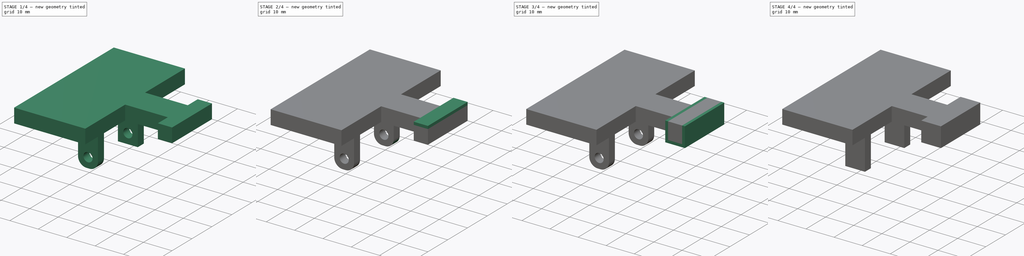
[diagram: build sequence overview — one tinted view per stage of 4, left to right]
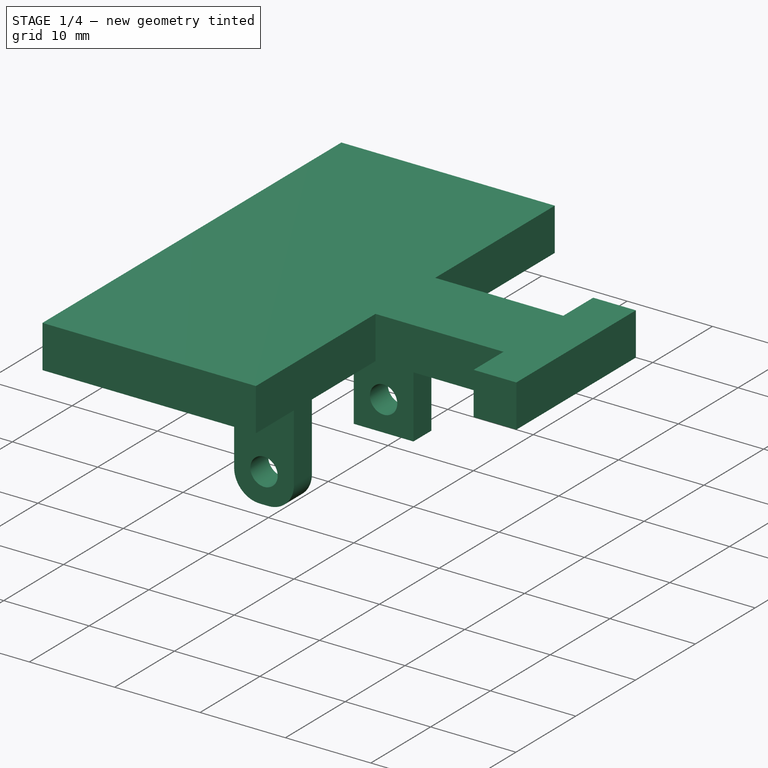
[diagram: stage 1 of 4 — iso view after this stage's code; geometry added in this stage tinted green]
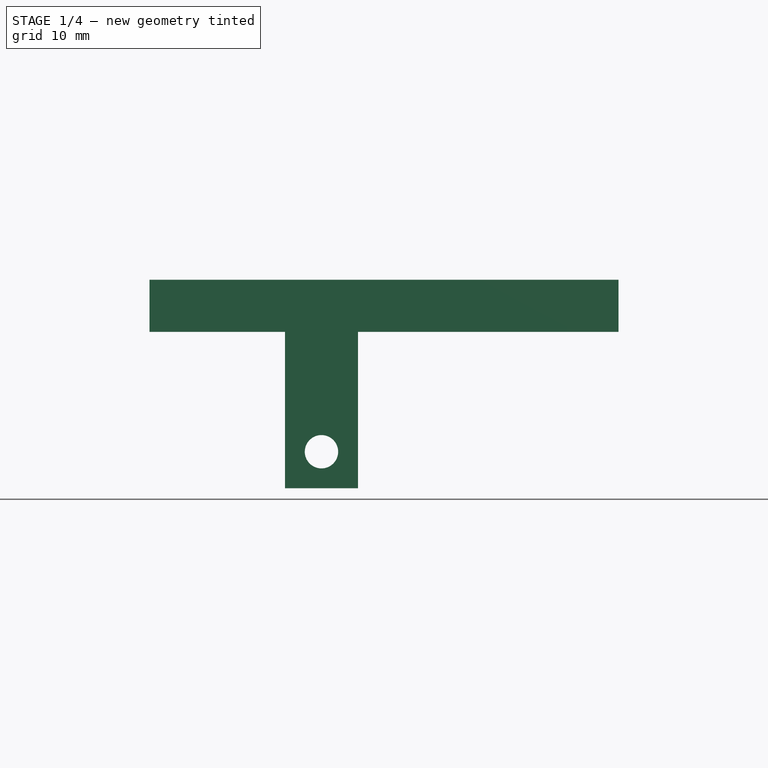
[diagram: stage 1 of 4 — front view after this stage's code; geometry added in this stage tinted green]
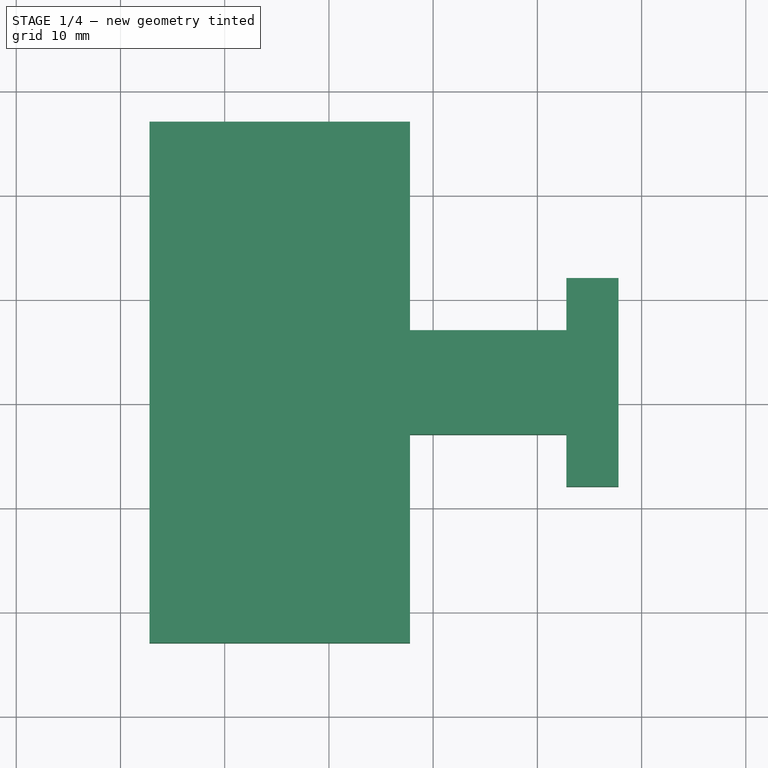
[diagram: stage 1 of 4 — top view after this stage's code; geometry added in this stage tinted green]
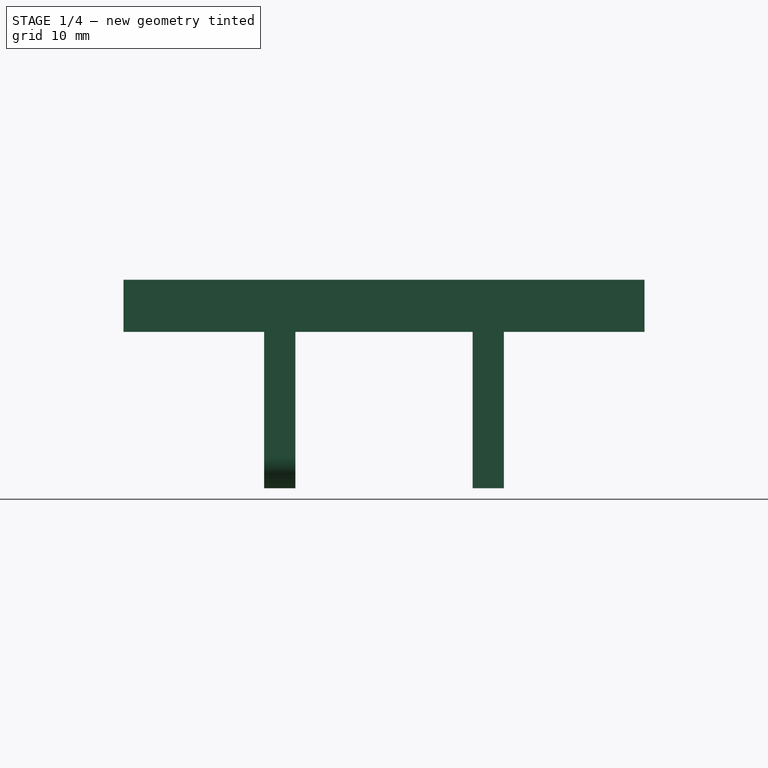
[diagram: stage 1 of 4 — right view after this stage's code; geometry added in this stage tinted green]
FCSTD DOCUMENT  (FreeCAD 0.15R4671 (Git))
Label: LfMount
License: All rights reserved
LicenseURL: http://en.wikipedia.org/wiki/All_rights_reserved
objects: Sketcher::SketchObject×7, PartDesign::Pad×6, PartDesign::Fillet×4, PartDesign::Pocket×2, App::MeasureDistance×1
note: 27 computed .brp shape members not serialized (recipe doc carries the construction recipe); baked Part::Feature solids carry a one-line shape summary decoded from their .brp

FEATURE [PartDesign::Pocket] Pocket
  Length = 100
  Type = 0
FEATURE [PartDesign::Fillet] Fillet
  Base = -> Pocket [Edge51]
  Radius = 3
FEATURE [PartDesign::Fillet] Fillet001
  Base = -> Fillet [Edge9]
  Radius = 3
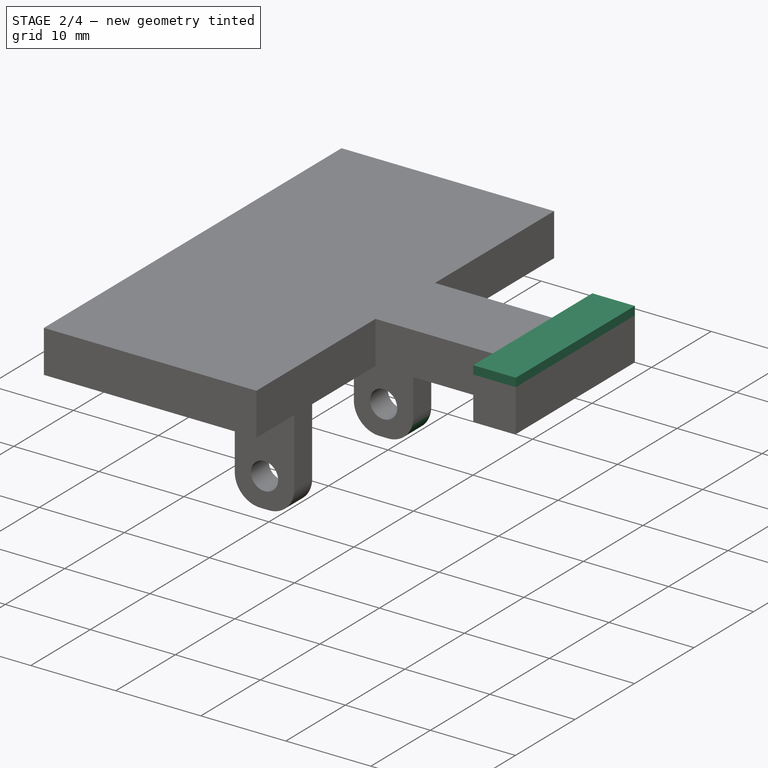
[diagram: stage 2 of 4 — iso view after this stage's code; geometry added in this stage tinted green]
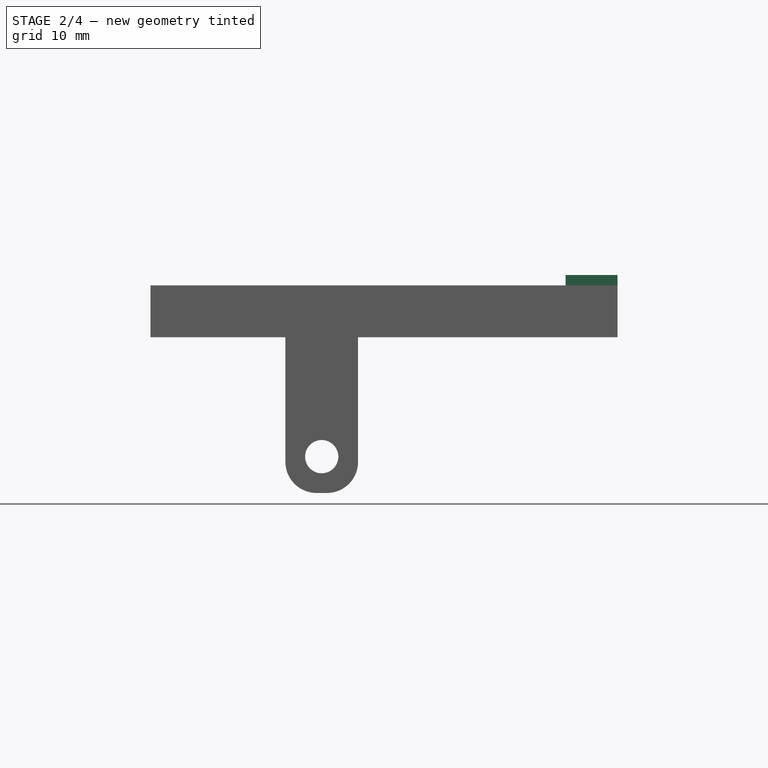
[diagram: stage 2 of 4 — front view after this stage's code; geometry added in this stage tinted green]
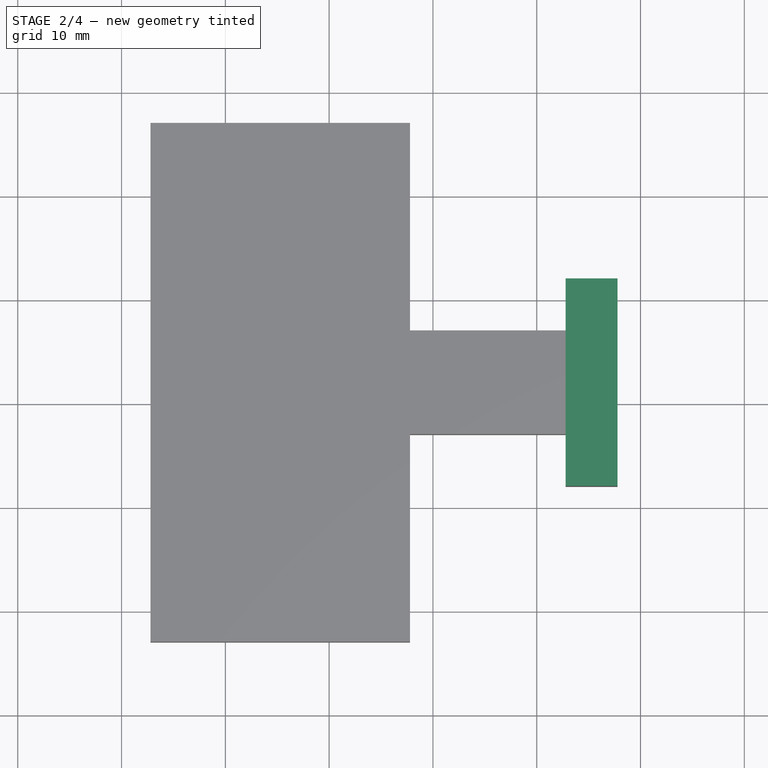
[diagram: stage 2 of 4 — top view after this stage's code; geometry added in this stage tinted green]
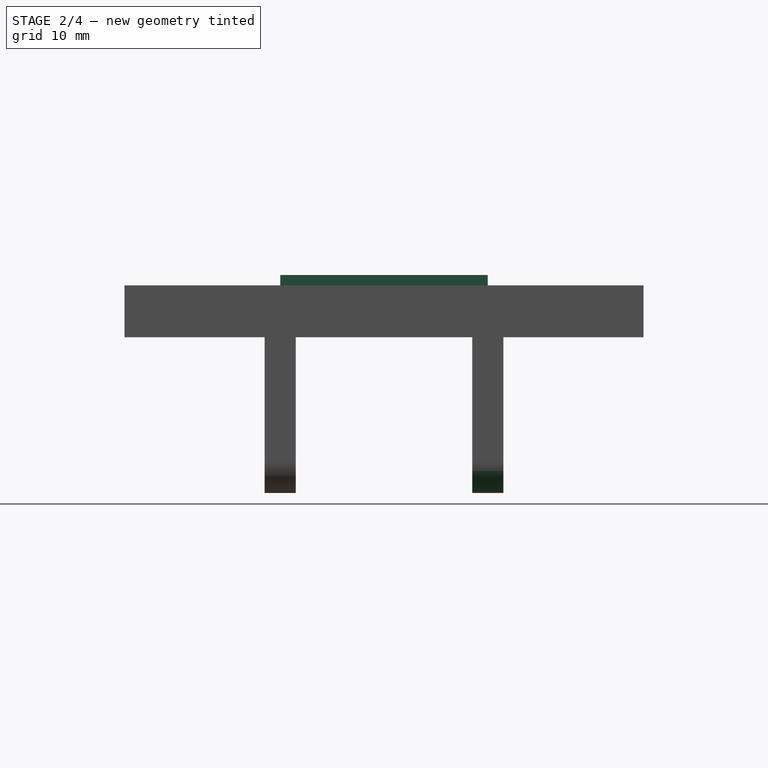
[diagram: stage 2 of 4 — right view after this stage's code; geometry added in this stage tinted green]
FEATURE [PartDesign::Fillet] Fillet002
  Base = -> Fillet001 [Edge63]
  Radius = 3
FEATURE [PartDesign::Fillet] Fillet003
  Base = -> Fillet002 [Edge33]
  Radius = 3
FEATURE [Sketcher::SketchObject] Sketch003
  ExternalGeometry = -> [Fillet003]
  Placement = pos=(0,0,5) rot=(0,0,1;0rad)
  Support = -> Fillet003 [Face26]
  sketch-geometry (4):
    g0: LineSegment StartX=-22.2152 StartY=21.7878 StartZ=0 EndX=-27.2152 EndY=21.7878 EndZ=0
    g1: LineSegment StartX=-27.2152 StartY=21.7878 StartZ=0 EndX=-27.2152 EndY=1.78784 EndZ=0
    g2: LineSegment StartX=-27.2152 StartY=1.78784 StartZ=0 EndX=-22.2152 EndY=1.78784 EndZ=0
    g3: LineSegment StartX=-22.2152 StartY=1.78784 StartZ=0 EndX=-22.2152 EndY=21.7878 EndZ=0
  constraints (10):
    c: Coincident(g0,g1)
    c: Coincident(g1,g2)
    c: Coincident(g2,g3)
    c: Coincident(g3,g0)
    c: Horizontal(g0)
    c: Horizontal(g2)
    c: Vertical(g1)
    c: Vertical(g3)
    c: Coincident(g0,g-3)
    c: Coincident(g1,g-4)
FEATURE [PartDesign::Pad] Pad002
  Length = 1
  Length2 = 100
  Sketch = -> Sketch003
  Type = 0
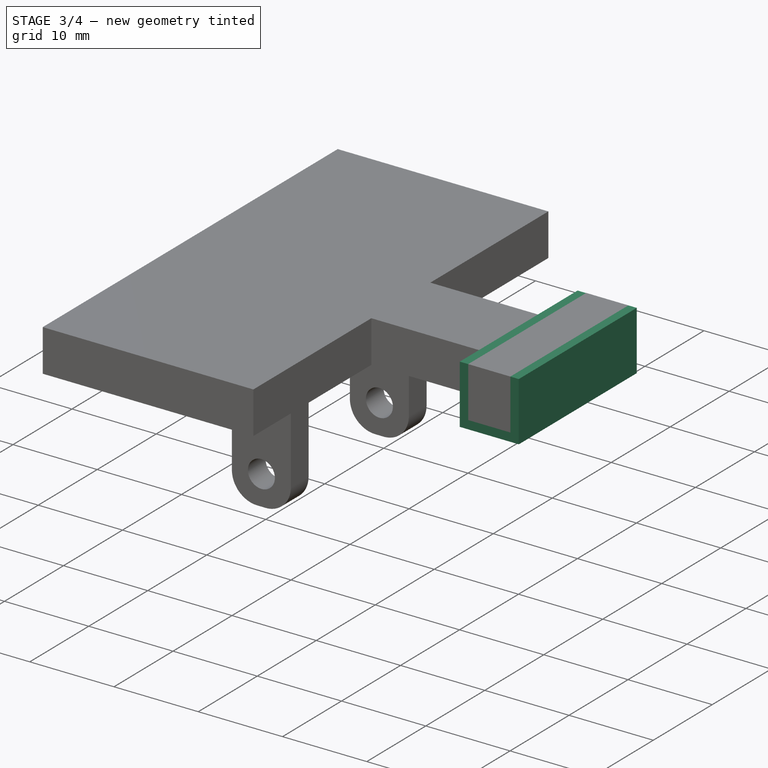
[diagram: stage 3 of 4 — iso view after this stage's code; geometry added in this stage tinted green]
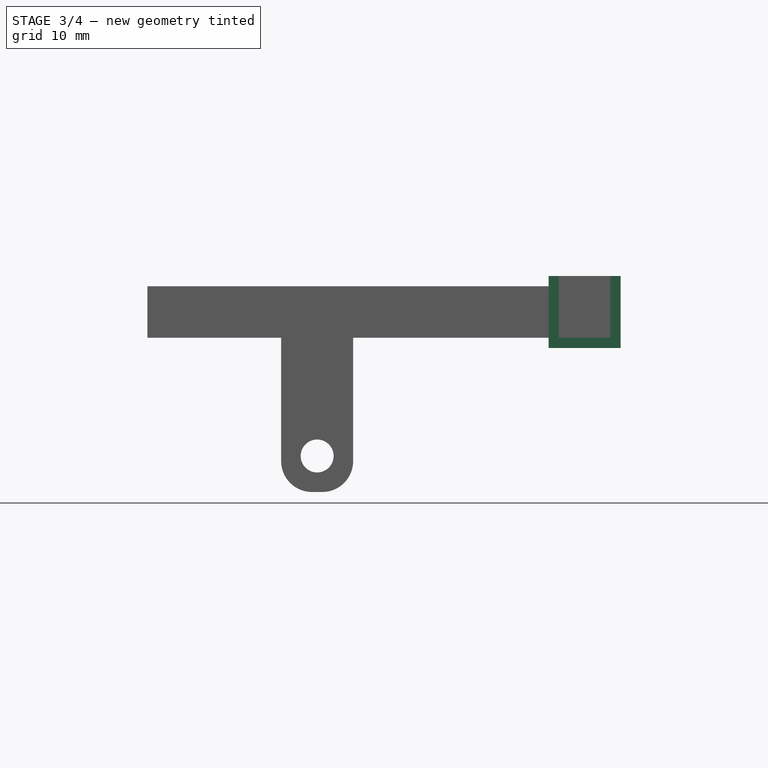
[diagram: stage 3 of 4 — front view after this stage's code; geometry added in this stage tinted green]
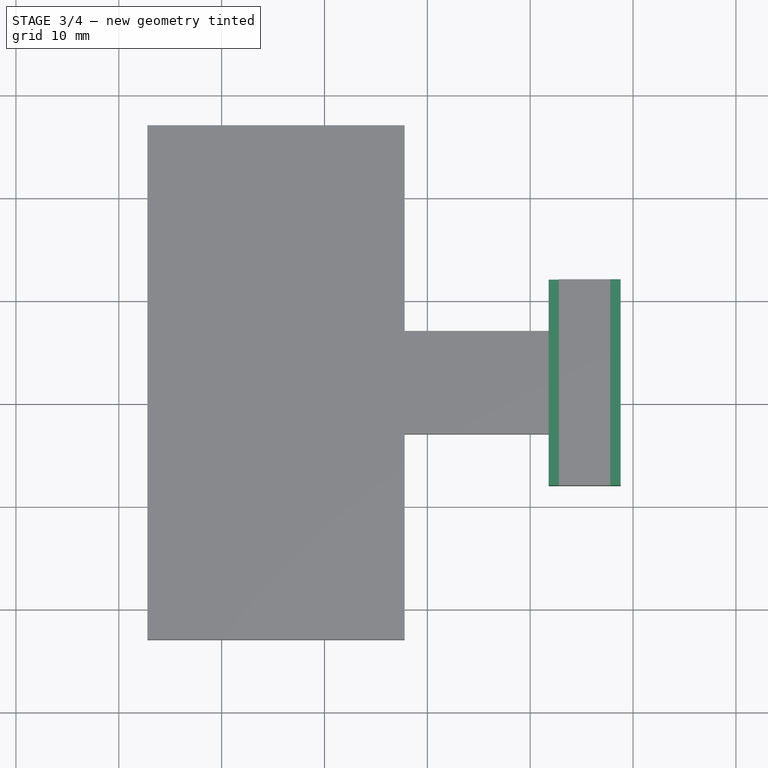
[diagram: stage 3 of 4 — top view after this stage's code; geometry added in this stage tinted green]
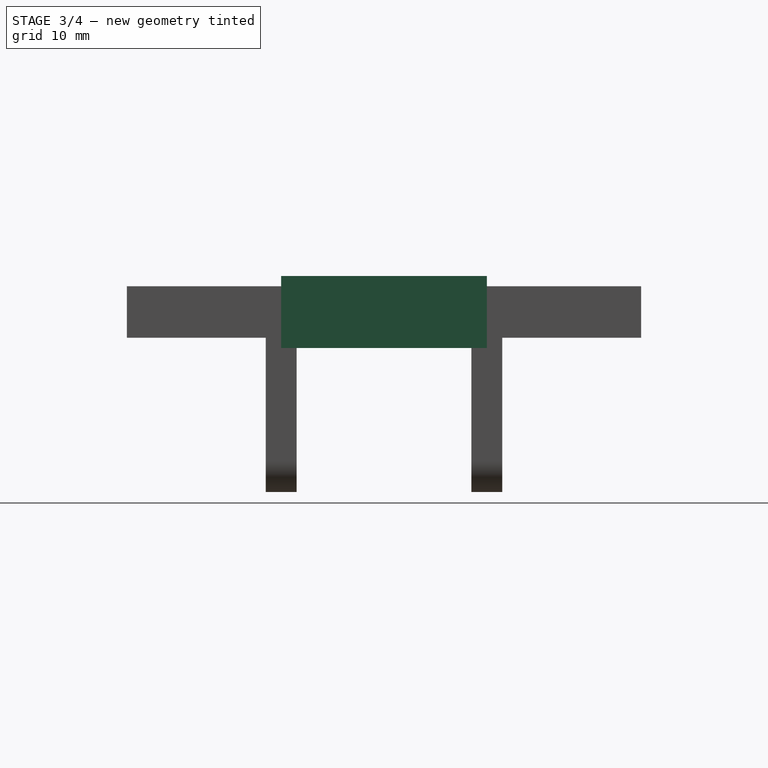
[diagram: stage 3 of 4 — right view after this stage's code; geometry added in this stage tinted green]
FEATURE [Sketcher::SketchObject] Sketch004
  ExternalGeometry = -> [Pad002]
  Placement = pos=(0,0,0) rot=(1,0,0;3.14159rad)
  Support = -> Pad002 [Face12]
  sketch-geometry (4):
    g0: LineSegment StartX=-27.2152 StartY=-21.7878 StartZ=0 EndX=-22.2152 EndY=-21.7878 EndZ=0
    g1: LineSegment StartX=-22.2152 StartY=-21.7878 StartZ=0 EndX=-22.2152 EndY=-1.78784 EndZ=0
    g2: LineSegment StartX=-22.2152 StartY=-1.78784 StartZ=0 EndX=-27.2152 EndY=-1.78784 EndZ=0
    g3: LineSegment StartX=-27.2152 StartY=-1.78784 StartZ=0 EndX=-27.2152 EndY=-21.7878 EndZ=0
  constraints (10):
    c: Coincident(g0,g1)
    c: Coincident(g1,g2)
    c: Coincident(g2,g3)
    c: Coincident(g3,g0)
    c: Horizontal(g0)
    c: Horizontal(g2)
    c: Vertical(g1)
    c: Vertical(g3)
    c: Coincident(g0,g-5)
    c: Coincident(g1,g-4)
FEATURE [PartDesign::Pad] Pad003
  Length = 1
  Length2 = 100
  Sketch = -> Sketch004
  Type = 0
FEATURE [Sketcher::SketchObject] Sketch005
  ExternalGeometry = -> [Pad003]
  Placement = pos=(-22.2152,0,0) rot=(0.57735,0.57735,0.57735;2.0944rad)
  Support = -> Pad003 [Face11]
  sketch-geometry (4):
    g0: LineSegment StartX=1.78784 StartY=6 StartZ=0 EndX=21.7878 EndY=6 EndZ=0
    g1: LineSegment StartX=21.7878 StartY=6 StartZ=0 EndX=21.7878 EndY=-1 EndZ=0
    g2: LineSegment StartX=21.7878 StartY=-1 StartZ=0 EndX=1.78784 EndY=-1 EndZ=0
    g3: LineSegment StartX=1.78784 StartY=-1 StartZ=0 EndX=1.78784 EndY=6 EndZ=0
  constraints (9):
    c: Coincident(g0,g1)
    c: Coincident(g1,g2)
    c: Coincident(g2,g3)
    c: Coincident(g3,g0)
    c: Horizontal(g0)
    c: Horizontal(g2)
    c: Vertical(g1)
    c: Vertical(g3)
    c: Coincident(g0,g-3)
FEATURE [PartDesign::Pad] Pad004
  Length = 1
  Length2 = 100
  Sketch = -> Sketch005
  Type = 0
FEATURE [Sketcher::SketchObject] Sketch006
  ExternalGeometry = -> [Pad004]
  Placement = pos=(-27.2152,0,0) rot=(0.57735,-0.57735,-0.57735;2.0944rad)
  Support = -> Pad004 [Face7]
  sketch-geometry (4):
    g0: LineSegment StartX=-21.7524 StartY=6 StartZ=0 EndX=-1.78784 EndY=6 EndZ=0
    g1: LineSegment StartX=-1.78784 StartY=6 StartZ=0 EndX=-1.78784 EndY=-1 EndZ=0
    g2: LineSegment StartX=-1.78784 StartY=-1 StartZ=0 EndX=-21.7524 EndY=-1 EndZ=0
    g3: LineSegment StartX=-21.7524 StartY=-1 StartZ=0 EndX=-21.7524 EndY=6 EndZ=0
  constraints (10):
    c: Coincident(g0,g1)
    c: Coincident(g1,g2)
    c: Coincident(g2,g3)
    c: Coincident(g3,g0)
    c: Horizontal(g0)
    c: Horizontal(g2)
    c: Vertical(g1)
    c: Vertical(g3)
    c: PointOnObject(g0,g-3)
    c: Coincident(g1,g-4)
FEATURE [PartDesign::Pad] Pad005
  Length = 1
  Length2 = 100
  Sketch = -> Sketch006
  Type = 0
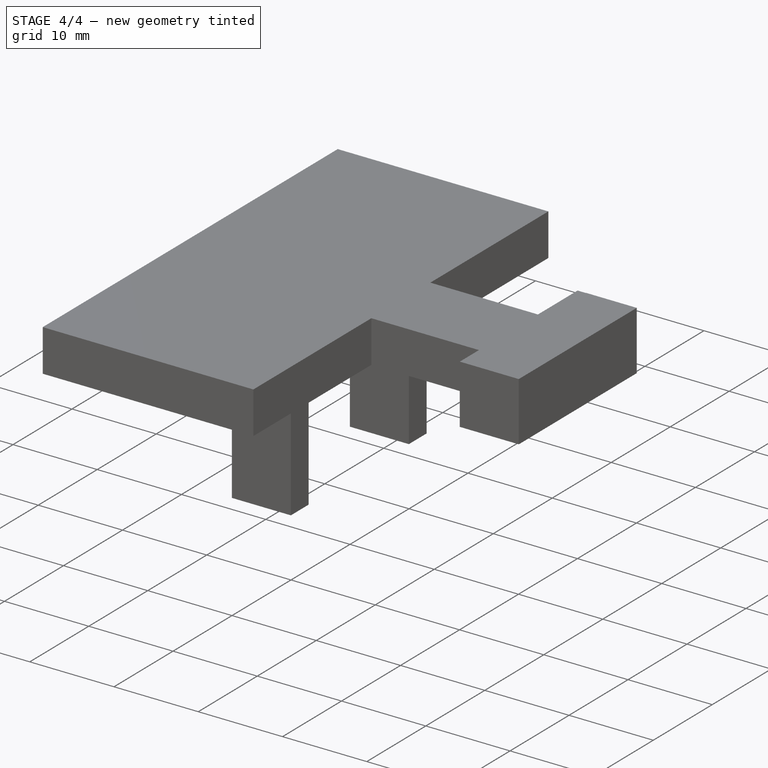
[diagram: stage 4 of 4 — iso view after this stage's code; geometry added in this stage tinted green]
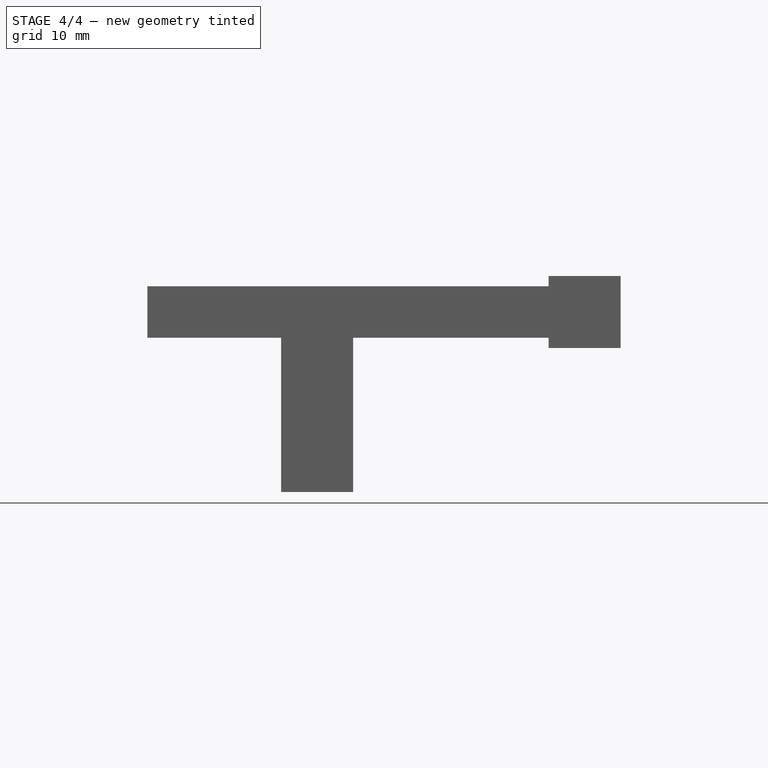
[diagram: stage 4 of 4 — front view after this stage's code; geometry added in this stage tinted green]
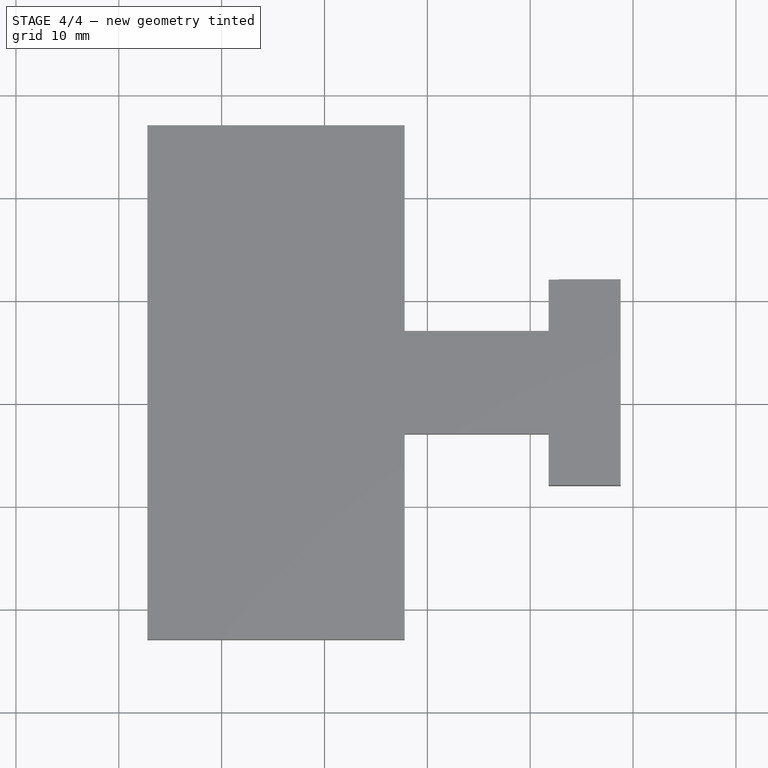
[diagram: stage 4 of 4 — top view after this stage's code; geometry added in this stage tinted green]
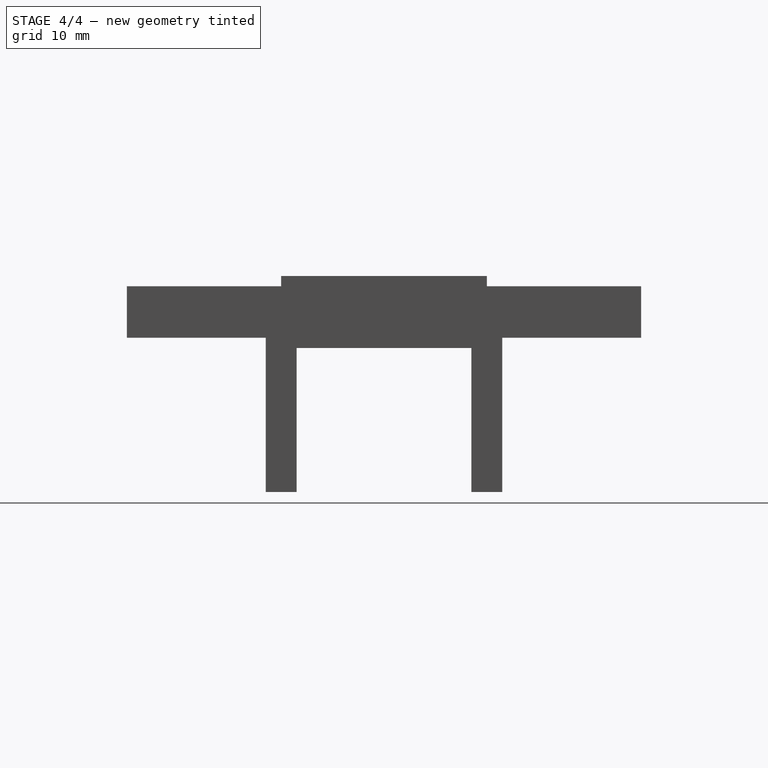
[diagram: stage 4 of 4 — right view after this stage's code; geometry added in this stage tinted green]
FEATURE [Sketcher::SketchObject] Sketch
  sketch-geometry (13):
    g0: LineSegment StartX=-67.2152 StartY=36.7878 StartZ=0 EndX=-67.2152 EndY=-13.2122 EndZ=0
    g1: LineSegment StartX=-67.2152 StartY=-13.2122 StartZ=0 EndX=-42.2152 EndY=-13.2122 EndZ=0
    g2: LineSegment StartX=-42.2152 StartY=-13.2122 StartZ=0 EndX=-42.2152 EndY=6.78784 EndZ=0
    g3: LineSegment StartX=-42.2152 StartY=6.78784 StartZ=0 EndX=-27.2152 EndY=6.78784 EndZ=0
    g4: LineSegment StartX=-27.2152 StartY=6.78784 StartZ=0 EndX=-27.2152 EndY=1.78784 EndZ=0
    g5: LineSegment StartX=-27.2152 StartY=1.78784 StartZ=0 EndX=-22.2152 EndY=1.78784 EndZ=0
    g6: LineSegment StartX=-22.2152 StartY=1.78784 StartZ=0 EndX=-22.2152 EndY=21.7878 EndZ=0
    g7: LineSegment StartX=-22.2152 StartY=21.7878 StartZ=0 EndX=-27.2152 EndY=21.7878 EndZ=0
    g8: LineSegment StartX=-27.2152 StartY=21.7878 StartZ=0 EndX=-27.2152 EndY=16.7878 EndZ=0
    g9: LineSegment StartX=-27.2152 StartY=16.7878 StartZ=0 EndX=-42.2152 EndY=16.7878 EndZ=0
    g10: LineSegment StartX=-42.2152 StartY=16.7878 StartZ=0 EndX=-42.2152 EndY=36.7878 EndZ=0
    g11: LineSegment StartX=-42.2152 StartY=36.7878 StartZ=0 EndX=-67.2152 EndY=36.7878 EndZ=0
    g12: LineSegment [constr] StartX=-42.2152 StartY=16.7878 StartZ=0 EndX=-42.2152 EndY=6.78784 EndZ=0
  constraints (36):
    c: Vertical(g0)
    c: Coincident(g0,g1)
    c: Horizontal(g1)
    c: Coincident(g1,g2)
    c: Vertical(g2)
    c: Coincident(g2,g3)
    c: Horizontal(g3)
    c: Coincident(g3,g4)
    c: Vertical(g4)
    c: Coincident(g4,g5)
    c: Horizontal(g5)
    c: Coincident(g5,g6)
    c: Vertical(g6)
    c: Coincident(g6,g7)
    c: Horizontal(g7)
    c: Coincident(g7,g8)
    c: Vertical(g8)
    c: Coincident(g8,g9)
    c: Horizontal(g9)
    c: Coincident(g9,g10)
    c: Vertical(g10)
    c: Coincident(g10,g11)
    c: Coincident(g11,g0)
    c: Horizontal(g11)
    c: Equal(g10,g2)
    c: Equal(g9,g3)
    c: Equal(g8,g4)
    c: Equal(g7,g5)
    c: DistanceY(g0) = -50
    c: DistanceX(g11) = -25
    c: DistanceX(g9) = -15
    c: DistanceX(g7) = -5
    c: DistanceY(g6) = 20
    c: Coincident(g12,g9)
    c: Coincident(g12,g2)
    c: DistanceY(g12) = -10
FEATURE [PartDesign::Pad] Pad
  Length = 5
  Length2 = 100
  Sketch = -> Sketch
  Type = 0
FEATURE [Sketcher::SketchObject] Sketch001
  ExternalGeometry = -> [Pad]
  Placement = pos=(0,0,0) rot=(1,0,0;3.14159rad)
  Support = -> Pad [Face13]
  sketch-geometry (12):
    g0: LineSegment [constr] StartX=-47.2152 StartY=13.2122 StartZ=0 EndX=-47.2152 EndY=-0.287842 EndZ=0
    g1: LineSegment [constr] StartX=-47.2152 StartY=-0.287842 StartZ=0 EndX=-67.2152 EndY=-0.287842 EndZ=0
    g2: LineSegment [constr] StartX=-67.2152 StartY=-23.2878 StartZ=0 EndX=-47.2152 EndY=-23.2878 EndZ=0
    g3: LineSegment [constr] StartX=-47.2152 StartY=-23.2878 StartZ=0 EndX=-47.2152 EndY=-36.7878 EndZ=0
    g4: LineSegment StartX=-47.2152 StartY=-0.287842 StartZ=0 EndX=-54.2152 EndY=-0.287842 EndZ=0
    g5: LineSegment StartX=-54.2152 StartY=-0.287842 StartZ=0 EndX=-54.2152 EndY=-3.28784 EndZ=0
    g6: LineSegment StartX=-54.2152 StartY=-3.28784 StartZ=0 EndX=-47.2152 EndY=-3.28784 EndZ=0
    g7: LineSegment StartX=-47.2152 StartY=-3.28784 StartZ=0 EndX=-47.2152 EndY=-0.287842 EndZ=0
    g8: LineSegment StartX=-47.2152 StartY=-23.2878 StartZ=0 EndX=-54.2152 EndY=-23.2878 EndZ=0
    g9: LineSegment StartX=-54.2152 StartY=-23.2878 StartZ=0 EndX=-54.2152 EndY=-20.2878 EndZ=0
    g10: LineSegment StartX=-54.2152 StartY=-20.2878 StartZ=0 EndX=-47.2152 EndY=-20.2878 EndZ=0
    g11: LineSegment StartX=-47.2152 StartY=-20.2878 StartZ=0 EndX=-47.2152 EndY=-23.2878 EndZ=0
  constraints (36):
    c: PointOnObject(g0,g-3)
    c: Vertical(g0)
    c: Coincident(g1,g0)
    c: PointOnObject(g1,g-4)
    c: Horizontal(g1)
    c: PointOnObject(g2,g-4)
    c: Horizontal(g2)
    c: Coincident(g3,g2)
    c: PointOnObject(g3,g-5)
    c: Vertical(g3)
    c: Equal(g0,g3)
    c: Equal(g1,g2)
    c: DistanceY(g0) = -13.5
    c: DistanceX(g1) = -20
    c: Coincident(g4,g5)
    c: Coincident(g5,g6)
    c: Coincident(g6,g7)
    c: Coincident(g7,g4)
    c: Horizontal(g4)
    c: Horizontal(g6)
    c: Vertical(g5)
    c: Vertical(g7)
    c: Coincident(g4,g0)
    c: Coincident(g8,g9)
    c: Coincident(g9,g10)
    c: Coincident(g10,g11)
    c: Coincident(g11,g8)
    c: Horizontal(g8)
    c: Horizontal(g10)
    c: Vertical(g9)
    c: Vertical(g11)
    c: Coincident(g8,g2)
    c: Equal(g10,g6)
    c: Equal(g5,g9)
    c: DistanceX(g6) = 7
    c: DistanceY(g7) = 3
FEATURE [PartDesign::Pad] Pad001
  Length = 15
  Length2 = 100
  Sketch = -> Sketch001
  Type = 0
FEATURE [Sketcher::SketchObject] Sketch007
  ExternalGeometry = -> [Pad005]
  Placement = pos=(0,1.78784,0) rot=(1,0,0;1.5708rad)
  Support = -> Pad005 [Face18]
  sketch-geometry (3):
    g0: LineSegment [constr] StartX=-24.7152 StartY=5 StartZ=0 EndX=-24.7152 EndY=2.5 EndZ=0
    g1: LineSegment [constr] StartX=-24.7152 StartY=2.5 StartZ=0 EndX=-27.2152 EndY=2.5 EndZ=0
    g2: Circle CenterX=-24.7152 CenterY=2.5 CenterZ=0 NormalX=0 NormalY=0 NormalZ=1 Radius=1.6
  constraints (9):
    c: PointOnObject(g0,g-3)
    c: Vertical(g0)
    c: Coincident(g1,g0)
    c: PointOnObject(g1,g-4)
    c: Horizontal(g1)
    c: Coincident(g2,g0)
    c: Radius(g2) = 1.6
    c: Equal(g0,g1)
    c: DistanceY(g0) = -2.5
FEATURE [PartDesign::Pocket] Pocket001
  Length = 30
  Sketch = -> Sketch007
  Type = 0
FEATURE [App::MeasureDistance] Distance  label="Distance: 1.908"
  Distance = 1.90801
  P1 = (-50.6574,0.287842,-13.0942)
  P2 = (-50.5664,0.287842,-15)
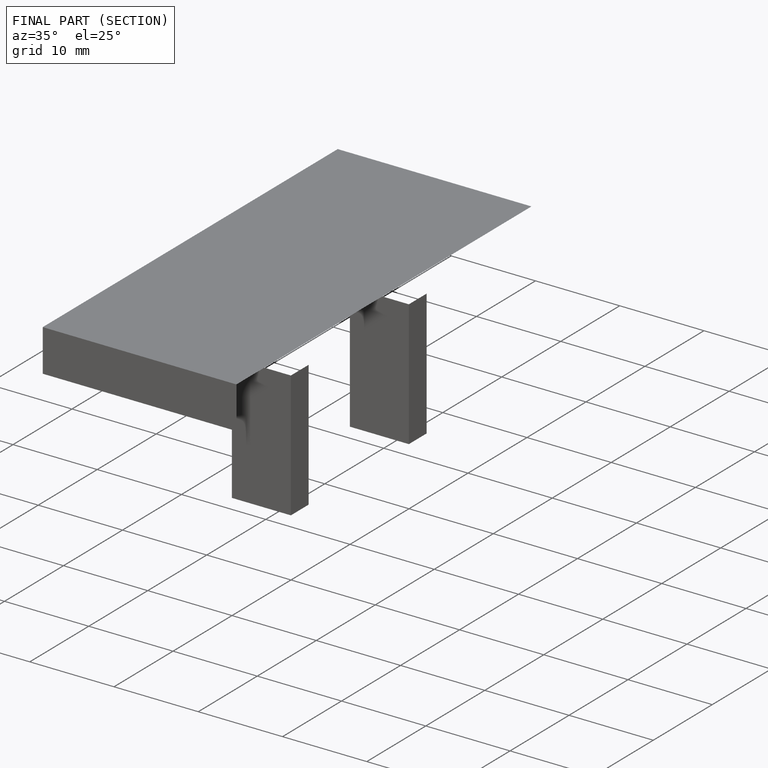
[diagram: finished part — half-section view (interior)]
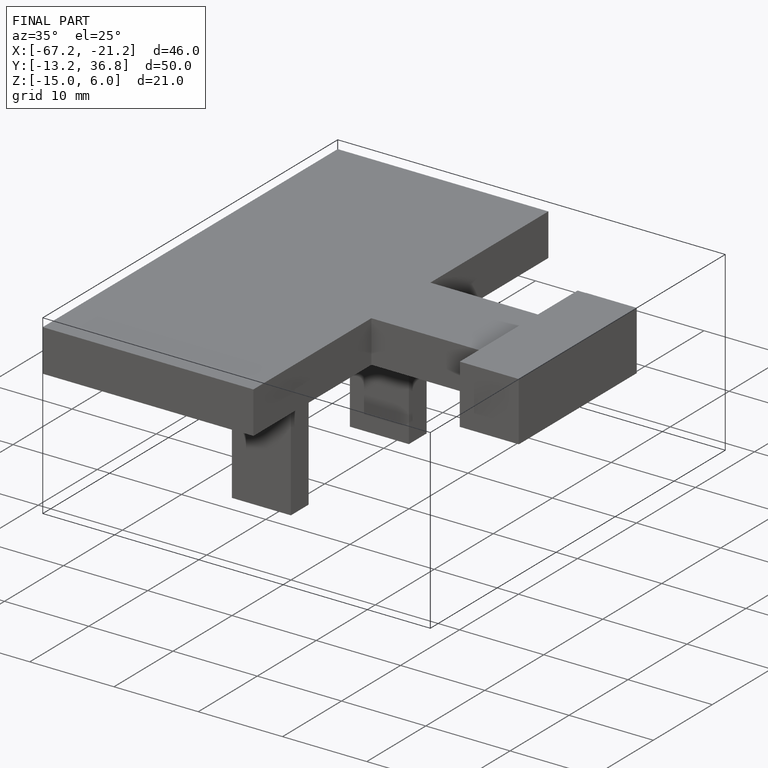
[diagram: finished part — iso view with bounding-box wireframe]
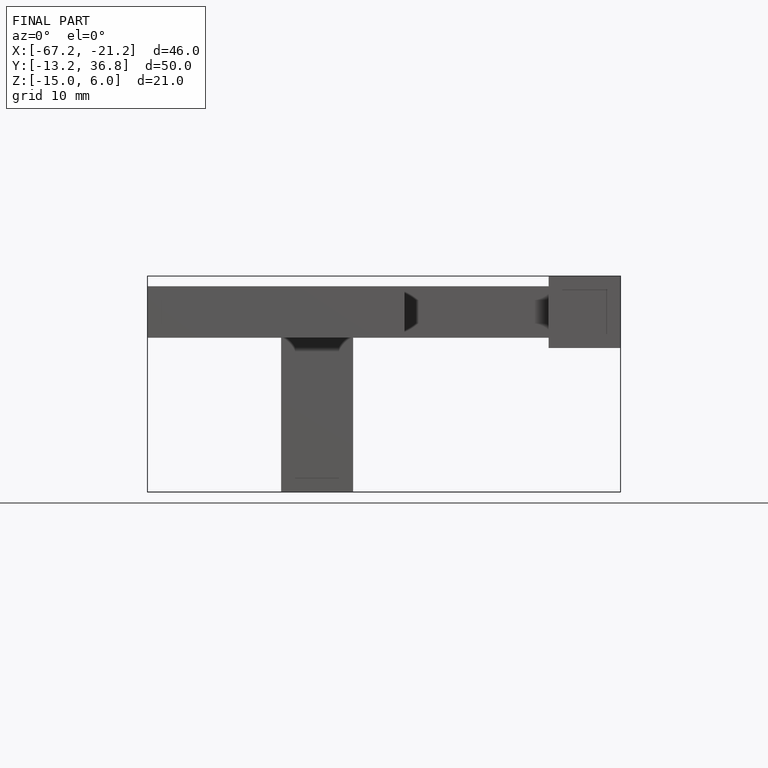
[diagram: finished part — front view with bounding-box wireframe]
